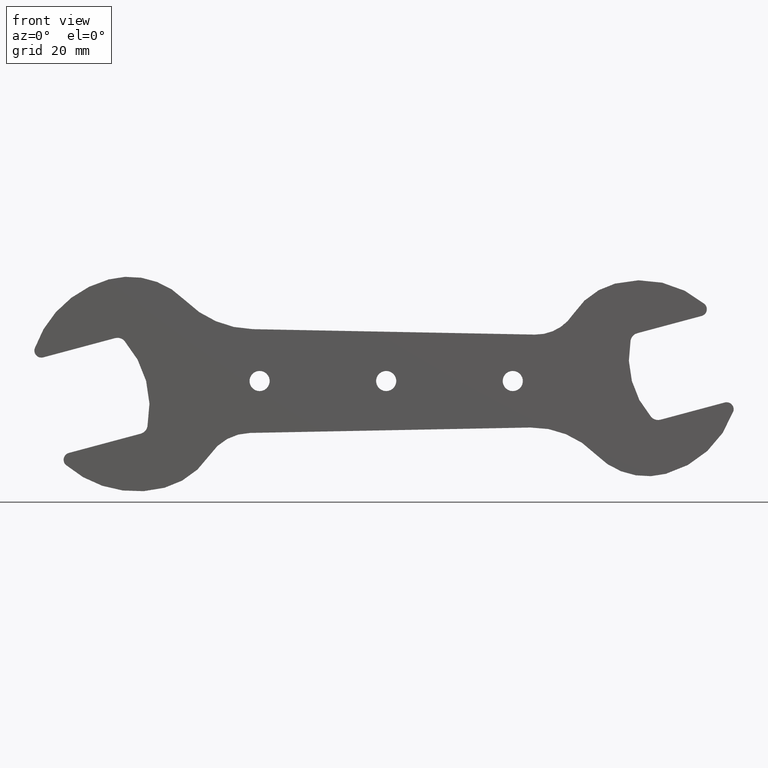
[diagram: clean part render]
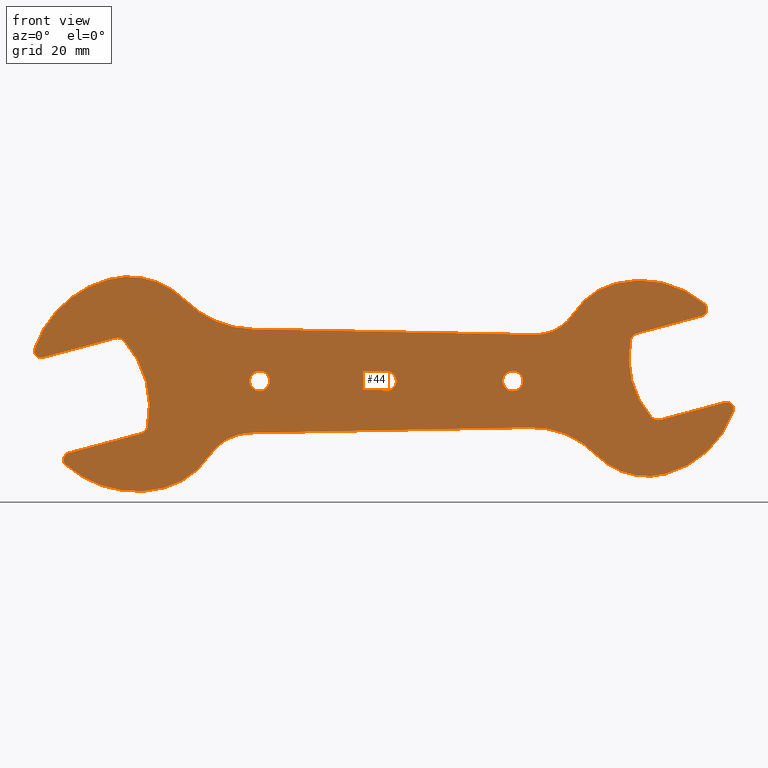
[diagram: same view with one face highlighted and labeled with its STEP entity id]
A machine part, front view. The second image highlights one B-rep face of the part: STEP entity #44.
In plain terms, the highlighted planar face has unit normal (-0, 1, 0).
Its self-contained STEP definition (entity closure, byte-faithful):
#44=ADVANCED_FACE('',(#120,#121,#122,#123),#119,.F.);
#119=PLANE('',#468);
#120=FACE_OUTER_BOUND('',#469,.T.);
#121=FACE_BOUND('',#470,.T.);
#122=FACE_BOUND('',#471,.T.);
#123=FACE_BOUND('',#472,.T.);
#465=CARTESIAN_POINT('',(-8.52579985120E+01,0.00000000000E+00,-3.09294073245E+01));
#466=DIRECTION('',(-0.00000000000E+00,1.00000000000E+00,0.00000000000E+00));
#467=DIRECTION('',(0.00000000000E+00,0.00000000000E+00,1.00000000000E+00));
#468=AXIS2_PLACEMENT_3D('',#465,#466,#467);
#469=EDGE_LOOP('',(#674,#675,#676,#677,#678,#679,#680,#681,#682,#683,#684,#685,#686,#687,#688,#689,#690,#691,#692,#693,#694,#695,#696,#697,#698,#699,#700,#701));
#470=EDGE_LOOP('',(#702,#703));
#471=EDGE_LOOP('',(#704,#705));
#472=EDGE_LOOP('',(#706,#707));
#674=ORIENTED_EDGE('',*,*,#836,.F.);
#675=ORIENTED_EDGE('',*,*,#832,.F.);
#676=ORIENTED_EDGE('',*,*,#873,.F.);
#677=ORIENTED_EDGE('',*,*,#874,.F.);
#678=ORIENTED_EDGE('',*,*,#875,.T.);
#679=ORIENTED_EDGE('',*,*,#876,.T.);
#680=ORIENTED_EDGE('',*,*,#877,.T.);
#681=ORIENTED_EDGE('',*,*,#878,.F.);
#682=ORIENTED_EDGE('',*,*,#879,.F.);
#683=ORIENTED_EDGE('',*,*,#880,.F.);
#684=ORIENTED_EDGE('',*,*,#881,.T.);
#685=ORIENTED_EDGE('',*,*,#882,.T.);
#686=ORIENTED_EDGE('',*,*,#883,.T.);
#687=ORIENTED_EDGE('',*,*,#884,.F.);
#688=ORIENTED_EDGE('',*,*,#885,.F.);
#689=ORIENTED_EDGE('',*,*,#886,.F.);
#690=ORIENTED_EDGE('',*,*,#887,.F.);
#691=ORIENTED_EDGE('',*,*,#888,.F.);
#692=ORIENTED_EDGE('',*,*,#889,.T.);
#693=ORIENTED_EDGE('',*,*,#890,.T.);
#694=ORIENTED_EDGE('',*,*,#891,.T.);
#695=ORIENTED_EDGE('',*,*,#892,.F.);
#696=ORIENTED_EDGE('',*,*,#893,.F.);
#697=ORIENTED_EDGE('',*,*,#894,.F.);
#698=ORIENTED_EDGE('',*,*,#895,.T.);
#699=ORIENTED_EDGE('',*,*,#896,.T.);
#700=ORIENTED_EDGE('',*,*,#897,.T.);
#701=ORIENTED_EDGE('',*,*,#839,.F.);
#702=ORIENTED_EDGE('',*,*,#898,.F.);
#703=ORIENTED_EDGE('',*,*,#899,.F.);
#704=ORIENTED_EDGE('',*,*,#900,.F.);
#705=ORIENTED_EDGE('',*,*,#901,.F.);
#706=ORIENTED_EDGE('',*,*,#902,.F.);
#707=ORIENTED_EDGE('',*,*,#903,.F.);
#832=EDGE_CURVE('',#934,#935,#936,.T.);
#836=EDGE_CURVE('',#935,#962,#963,.T.);
#839=EDGE_CURVE('',#962,#982,#983,.T.);
#873=EDGE_CURVE('',#1218,#934,#1219,.T.);
#874=EDGE_CURVE('',#1225,#1218,#1226,.T.);
#875=EDGE_CURVE('',#1225,#1232,#1233,.T.);
#876=EDGE_CURVE('',#1232,#1239,#1240,.T.);
#877=EDGE_CURVE('',#1239,#1246,#1247,.T.);
#878=EDGE_CURVE('',#1253,#1246,#1254,.T.);
#879=EDGE_CURVE('',#1260,#1253,#1261,.T.);
#880=EDGE_CURVE('',#1267,#1260,#1268,.T.);
#881=EDGE_CURVE('',#1267,#1274,#1275,.T.);
#882=EDGE_CURVE('',#1274,#1281,#1282,.T.);
#883=EDGE_CURVE('',#1281,#1288,#1289,.T.);
#884=EDGE_CURVE('',#1295,#1288,#1296,.T.);
#885=EDGE_CURVE('',#1302,#1295,#1303,.T.);
#886=EDGE_CURVE('',#1309,#1302,#1310,.T.);
#887=EDGE_CURVE('',#1316,#1309,#1317,.T.);
#888=EDGE_CURVE('',#1323,#1316,#1324,.T.);
#889=EDGE_CURVE('',#1323,#1330,#1331,.T.);
#890=EDGE_CURVE('',#1330,#1337,#1338,.T.);
#891=EDGE_CURVE('',#1337,#1344,#1345,.T.);
#892=EDGE_CURVE('',#1351,#1344,#1352,.T.);
#893=EDGE_CURVE('',#1358,#1351,#1359,.T.);
#894=EDGE_CURVE('',#1365,#1358,#1366,.T.);
#895=EDGE_CURVE('',#1365,#1372,#1373,.T.);
#896=EDGE_CURVE('',#1372,#1379,#1380,.T.);
#897=EDGE_CURVE('',#1379,#982,#1386,.T.);
#898=EDGE_CURVE('',#1392,#1393,#1394,.T.);
#899=EDGE_CURVE('',#1393,#1392,#1400,.T.);
#900=EDGE_CURVE('',#1406,#1407,#1408,.T.);
#901=EDGE_CURVE('',#1407,#1406,#1414,.T.);
#902=EDGE_CURVE('',#1420,#1421,#1422,.T.);
#903=EDGE_CURVE('',#1421,#1420,#1428,.T.);
#934=VERTEX_POINT('',#1614);
#935=VERTEX_POINT('',#1615);
#936=CIRCLE('',#1619,2.10000000000E+01);
#962=VERTEX_POINT('',#1632);
#963=CIRCLE('',#1636,2.00000000000E+00);
#982=VERTEX_POINT('',#1645);
#983=LINE('',#1646,#1647);
#1218=VERTEX_POINT('',#1805);
#1219=CIRCLE('',#1809,2.00000000000E+00);
#1225=VERTEX_POINT('',#1810);
#1226=LINE('',#1811,#1812);
#1232=VERTEX_POINT('',#1814);
#1233=CIRCLE('',#1818,1.50000000000E+00);
#1239=VERTEX_POINT('',#1819);
#1240=CIRCLE('',#1823,2.30000000000E+01);
#1246=VERTEX_POINT('',#1824);
#1247=CIRCLE('',#1828,1.67000000000E+01);
#1253=VERTEX_POINT('',#1829);
#1254=CIRCLE('',#1833,1.05000000000E+01);
#1260=VERTEX_POINT('',#1834);
#1261=LINE('',#1835,#1836);
#1267=VERTEX_POINT('',#1838);
#1268=CIRCLE('',#1842,1.90000000000E+01);
#1274=VERTEX_POINT('',#1843);
#1275=CIRCLE('',#1847,1.53000000000E+01);
#1281=VERTEX_POINT('',#1848);
#1282=CIRCLE('',#1852,2.10000000000E+01);
#1288=VERTEX_POINT('',#1853);
#1289=CIRCLE('',#1857,1.50000000000E+00);
#1295=VERTEX_POINT('',#1858);
#1296=LINE('',#1859,#1860);
#1302=VERTEX_POINT('',#1862);
#1303=CIRCLE('',#1866,2.00000000000E+00);
#1309=VERTEX_POINT('',#1867);
#1310=CIRCLE('',#1871,1.90000000000E+01);
#1316=VERTEX_POINT('',#1872);
#1317=CIRCLE('',#1876,2.00000000000E+00);
#1323=VERTEX_POINT('',#1877);
#1324=LINE('',#1878,#1879);
#1330=VERTEX_POINT('',#1881);
#1331=CIRCLE('',#1885,1.50000000000E+00);
#1337=VERTEX_POINT('',#1886);
#1338=CIRCLE('',#1890,2.09999405716E+01);
#1344=VERTEX_POINT('',#1891);
#1345=CIRCLE('',#1895,1.52999912539E+01);
#1351=VERTEX_POINT('',#1896);
#1352=CIRCLE('',#1900,9.50000000000E+00);
#1358=VERTEX_POINT('',#1901);
#1359=LINE('',#1902,#1903);
#1365=VERTEX_POINT('',#1905);
#1366=CIRCLE('',#1909,2.10000000000E+01);
#1372=VERTEX_POINT('',#1910);
#1373=CIRCLE('',#1914,1.67000000000E+01);
#1379=VERTEX_POINT('',#1915);
#1380=CIRCLE('',#1919,2.30000000000E+01);
#1386=CIRCLE('',#1923,1.50000000000E+00);
#1392=VERTEX_POINT('',#1924);
#1393=VERTEX_POINT('',#1925);
#1394=CIRCLE('',#1929,2.15000000000E+00);
#1400=CIRCLE('',#1933,2.15000000000E+00);
#1406=VERTEX_POINT('',#1934);
#1407=VERTEX_POINT('',#1935);
#1408=CIRCLE('',#1939,2.15000000000E+00);
#1414=CIRCLE('',#1943,2.15000000000E+00);
#1420=VERTEX_POINT('',#1944);
#1421=VERTEX_POINT('',#1945);
#1422=CIRCLE('',#1949,2.15000000000E+00);
#1428=CIRCLE('',#1953,2.15000000000E+00);
#1614=CARTESIAN_POINT('',(-5.09231709253E+01,0.00000000000E+00,-9.70941084283E+00));
#1615=CARTESIAN_POINT('',(-5.58148508249E+01,0.00000000000E+00,8.54658872338E+00));
#1616=CARTESIAN_POINT('',(-7.14835968893E+01,0.00000000000E+00,-5.43519931572E+00));
#1617=DIRECTION('',(0.00000000000E+00,-1.00000000000E+00,0.00000000000E+00));
#1618=DIRECTION('',(-0.00000000000E+00,-0.00000000000E+00,-1.00000000000E+00));
#1619=AXIS2_PLACEMENT_3D('',#1616,#1617,#1618);
#1632=CARTESIAN_POINT('',(-5.78247502838E+01,0.00000000000E+00,9.14684155830E+00));
#1633=CARTESIAN_POINT('',(-5.73071123548E+01,0.00000000000E+00,7.21498986252E+00));
#1634=DIRECTION('',(0.00000000000E+00,-1.00000000000E+00,0.00000000000E+00));
#1635=DIRECTION('',(-0.00000000000E+00,-0.00000000000E+00,-1.00000000000E+00));
#1636=AXIS2_PLACEMENT_3D('',#1633,#1634,#1635);
#1645=CARTESIAN_POINT('',(-7.31572476037E+01,0.00000000000E+00,5.03851265519E+00));
#1646=CARTESIAN_POINT('',(-5.78247502838E+01,0.00000000000E+00,9.14684155830E+00));
#1647=VECTOR('',#1648,1.58733689065E+01);
#1648=DIRECTION('',(-9.65925847893E-01,0.00000000000E+00,-2.58818964475E-01));
#1805=CARTESIAN_POINT('',(-5.23636689178E+01,0.00000000000E+00,-1.12341948050E+01));
#1806=CARTESIAN_POINT('',(-5.28813067313E+01,0.00000000000E+00,-9.30234307834E+00));
#1807=DIRECTION('',(0.00000000000E+00,-1.00000000000E+00,0.00000000000E+00));
#1808=DIRECTION('',(-0.00000000000E+00,-0.00000000000E+00,-1.00000000000E+00));
#1809=AXIS2_PLACEMENT_3D('',#1806,#1807,#1808);
#1810=CARTESIAN_POINT('',(-6.76961680509E+01,0.00000000000E+00,-1.53425232125E+01));
#1811=CARTESIAN_POINT('',(-6.76961680509E+01,0.00000000000E+00,-1.53425232125E+01));
#1812=VECTOR('',#1813,1.58733705296E+01);
#1813=DIRECTION('',(9.65925863352E-01,0.00000000000E+00,2.58818906782E-01));
#1814=CARTESIAN_POINT('',(-6.82902890689E+01,0.00000000000E+00,-1.79249858688E+01));
#1815=CARTESIAN_POINT('',(-6.73079396907E+01,0.00000000000E+00,-1.67914120075E+01));
#1816=DIRECTION('',(0.00000000000E+00,-1.00000000000E+00,0.00000000000E+00));
#1817=DIRECTION('',(-0.00000000000E+00,-0.00000000000E+00,-1.00000000000E+00));
#1818=AXIS2_PLACEMENT_3D('',#1815,#1816,#1817);
#1819=CARTESIAN_POINT('',(-4.72747603967E+01,0.00000000000E+00,-2.27598146308E+01));
#1820=CARTESIAN_POINT('',(-5.32275986032E+01,0.00000000000E+00,-5.43519994716E-01));
#1821=DIRECTION('',(0.00000000000E+00,-1.00000000000E+00,-0.00000000000E+00));
#1822=DIRECTION('',(2.58819045103E-01,0.00000000000E+00,-9.65925826289E-01));
#1823=AXIS2_PLACEMENT_3D('',#1820,#1821,#1822);
#1824=CARTESIAN_POINT('',(-3.76426909546E+01,0.00000000000E+00,-1.58030664305E+01));
#1825=CARTESIAN_POINT('',(-5.15970384499E+01,0.00000000000E+00,-6.62885333177E+00));
#1826=DIRECTION('',(0.00000000000E+00,-1.00000000000E+00,0.00000000000E+00));
#1827=DIRECTION('',(-0.00000000000E+00,-0.00000000000E+00,-1.00000000000E+00));
#1828=AXIS2_PLACEMENT_3D('',#1825,#1826,#1827);
#1829=CARTESIAN_POINT('',(-2.90717174274E+01,0.00000000000E+00,-1.10732413147E+01));
#1830=CARTESIAN_POINT('',(-2.88689994156E+01,0.00000000000E+00,-2.15712842470E+01));
#1831=DIRECTION('',(0.00000000000E+00,-1.00000000000E+00,0.00000000000E+00));
#1832=DIRECTION('',(-0.00000000000E+00,-0.00000000000E+00,-1.00000000000E+00));
#1833=AXIS2_PLACEMENT_3D('',#1830,#1831,#1832);
#1834=CARTESIAN_POINT('',(3.07427415672E+01,0.00000000000E+00,-9.91821953754E+00));
#1835=CARTESIAN_POINT('',(3.07427415672E+01,0.00000000000E+00,-9.91821953754E+00));
#1836=VECTOR('',#1837,5.98256097347E+01);
#1837=DIRECTION('',(-9.99813612597E-01,0.00000000000E+00,-1.93064773150E-02));
#1838=CARTESIAN_POINT('',(4.47373841532E+01,0.00000000000E+00,-1.56752471010E+01));
#1839=CARTESIAN_POINT('',(3.11095646362E+01,0.00000000000E+00,-2.89146781769E+01));
#1840=DIRECTION('',(0.00000000000E+00,-1.00000000000E+00,0.00000000000E+00));
#1841=DIRECTION('',(-0.00000000000E+00,-0.00000000000E+00,-1.00000000000E+00));
#1842=AXIS2_PLACEMENT_3D('',#1839,#1840,#1841);
#1843=CARTESIAN_POINT('',(5.96712903664E+01,0.00000000000E+00,-1.97926884927E+01));
#1844=CARTESIAN_POINT('',(5.57113651327E+01,0.00000000000E+00,-5.01402102415E+00));
#1845=DIRECTION('',(0.00000000000E+00,-1.00000000000E+00,-0.00000000000E+00));
#1846=DIRECTION('',(2.58818631671E-01,0.00000000000E+00,-9.65925937068E-01));
#1847=AXIS2_PLACEMENT_3D('',#1844,#1845,#1846);
#1848=CARTESIAN_POINT('',(7.40293534263E+01,0.00000000000E+00,-6.52444529556E+00));
#1849=CARTESIAN_POINT('',(5.42360991013E+01,0.00000000000E+00,4.91756185695E-01));
#1850=DIRECTION('',(0.00000000000E+00,-1.00000000000E+00,0.00000000000E+00));
#1851=DIRECTION('',(-0.00000000000E+00,-0.00000000000E+00,-1.00000000000E+00));
#1852=AXIS2_PLACEMENT_3D('',#1849,#1850,#1851);
#1853=CARTESIAN_POINT('',(7.22273209163E+01,0.00000000000E+00,-4.57439932410E+00));
#1854=CARTESIAN_POINT('',(7.26155495460E+01,0.00000000000E+00,-6.02328804690E+00));
#1855=DIRECTION('',(0.00000000000E+00,-1.00000000000E+00,0.00000000000E+00));
#1856=DIRECTION('',(-0.00000000000E+00,-0.00000000000E+00,-1.00000000000E+00));
#1857=AXIS2_PLACEMENT_3D('',#1854,#1855,#1856);
#1858=CARTESIAN_POINT('',(5.85126918379E+01,0.00000000000E+00,-8.24922373987E+00));
#1859=CARTESIAN_POINT('',(5.85126918379E+01,0.00000000000E+00,-8.24922373987E+00));
#1860=VECTOR('',#1861,1.41984289710E+01);
#1861=DIRECTION('',(9.65925815201E-01,0.00000000000E+00,2.58819086484E-01));
#1862=CARTESIAN_POINT('',(5.64940682758E+01,0.00000000000E+00,-7.63912959919E+00));
#1863=CARTESIAN_POINT('',(5.79950536649E+01,0.00000000000E+00,-6.31737210947E+00));
#1864=DIRECTION('',(0.00000000000E+00,-1.00000000000E+00,-0.00000000000E+00));
#1865=DIRECTION('',(2.58819086484E-01,0.00000000000E+00,-9.65925815201E-01));
#1866=AXIS2_PLACEMENT_3D('',#1863,#1864,#1865);
#1867=CARTESIAN_POINT('',(5.21261087122E+01,0.00000000000E+00,8.66228567357E+00));
#1868=CARTESIAN_POINT('',(7.07534294725E+01,0.00000000000E+00,4.91756655313E+00));
#1869=DIRECTION('',(0.00000000000E+00,-1.00000000000E+00,0.00000000000E+00));
#1870=DIRECTION('',(-0.00000000000E+00,-0.00000000000E+00,-1.00000000000E+00));
#1871=AXIS2_PLACEMENT_3D('',#1868,#1869,#1870);
#1872=CARTESIAN_POINT('',(5.35692413070E+01,0.00000000000E+00,1.01999563872E+01));
#1873=CARTESIAN_POINT('',(5.40868793185E+01,0.00000000000E+00,8.26810471353E+00));
#1874=DIRECTION('',(0.00000000000E+00,-1.00000000000E+00,0.00000000000E+00));
#1875=DIRECTION('',(-0.00000000000E+00,-0.00000000000E+00,-1.00000000000E+00));
#1876=AXIS2_PLACEMENT_3D('',#1873,#1874,#1875);
#1877=CARTESIAN_POINT('',(6.72838812483E+01,0.00000000000E+00,1.38747824850E+01));
#1878=CARTESIAN_POINT('',(6.72838812483E+01,0.00000000000E+00,1.38747824850E+01));
#1879=VECTOR('',#1880,1.41984398991E+01);
#1880=DIRECTION('',(-9.65925836834E-01,0.00000000000E+00,-2.58819005748E-01));
#1881=CARTESIAN_POINT('',(6.78694657598E+01,0.00000000000E+00,1.64645867506E+01));
#1882=CARTESIAN_POINT('',(6.68956527396E+01,0.00000000000E+00,1.53236712403E+01));
#1883=DIRECTION('',(0.00000000000E+00,-1.00000000000E+00,0.00000000000E+00));
#1884=DIRECTION('',(-0.00000000000E+00,-0.00000000000E+00,-1.00000000000E+00));
#1885=AXIS2_PLACEMENT_3D('',#1882,#1883,#1884);
#1886=CARTESIAN_POINT('',(4.88007957322E+01,0.00000000000E+00,2.07761624477E+01));
#1887=CARTESIAN_POINT('',(5.42361220590E+01,0.00000000000E+00,4.91814807453E-01));
#1888=DIRECTION('',(0.00000000000E+00,-1.00000000000E+00,0.00000000000E+00));
#1889=DIRECTION('',(-0.00000000000E+00,-0.00000000000E+00,-1.00000000000E+00));
#1890=AXIS2_PLACEMENT_3D('',#1887,#1888,#1889);
#1891=CARTESIAN_POINT('',(3.98866303135E+01,0.00000000000E+00,1.42646227154E+01));
#1892=CARTESIAN_POINT('',(5.27608280185E+01,0.00000000000E+00,5.99753339554E+00));
#1893=DIRECTION('',(0.00000000000E+00,-1.00000000000E+00,0.00000000000E+00));
#1894=DIRECTION('',(-0.00000000000E+00,-0.00000000000E+00,-1.00000000000E+00));
#1895=AXIS2_PLACEMENT_3D('',#1892,#1893,#1894);
#1896=CARTESIAN_POINT('',(3.17094296317E+01,0.00000000000E+00,9.89955639787E+00));
#1897=CARTESIAN_POINT('',(3.18928428552E+01,0.00000000000E+00,1.93977856849E+01));
#1898=DIRECTION('',(0.00000000000E+00,-1.00000000000E+00,-0.00000000000E+00));
#1899=DIRECTION('',(8.41451311399E-01,0.00000000000E+00,-5.40332944161E-01));
#1900=AXIS2_PLACEMENT_3D('',#1897,#1898,#1899);
#1901=CARTESIAN_POINT('',(-2.84643007519E+01,0.00000000000E+00,1.10615264373E+01));
#1902=CARTESIAN_POINT('',(-2.84643007519E+01,0.00000000000E+00,1.10615264373E+01));
#1903=VECTOR('',#1904,6.01849483065E+01);
#1904=DIRECTION('',(9.99813609164E-01,0.00000000000E+00,-1.93066551048E-02));
#1905=CARTESIAN_POINT('',(-4.29868516019E+01,0.00000000000E+00,1.72875378755E+01));
#1906=CARTESIAN_POINT('',(-2.80588609947E+01,0.00000000000E+00,3.20576122298E+01));
#1907=DIRECTION('',(0.00000000000E+00,-1.00000000000E+00,0.00000000000E+00));
#1908=DIRECTION('',(-0.00000000000E+00,-0.00000000000E+00,-1.00000000000E+00));
#1909=AXIS2_PLACEMENT_3D('',#1906,#1907,#1908);
#1910=CARTESIAN_POINT('',(-5.91804366406E+01,0.00000000000E+00,2.16727740099E+01));
#1911=CARTESIAN_POINT('',(-5.48581584182E+01,0.00000000000E+00,5.54181207947E+00));
#1912=DIRECTION('',(0.00000000000E+00,-1.00000000000E+00,0.00000000000E+00));
#1913=DIRECTION('',(-0.00000000000E+00,-0.00000000000E+00,-1.00000000000E+00));
#1914=AXIS2_PLACEMENT_3D('',#1911,#1912,#1913);
#1915=CARTESIAN_POINT('',(-7.49630023840E+01,0.00000000000E+00,6.97793082855E+00));
#1916=CARTESIAN_POINT('',(-5.32275986032E+01,0.00000000000E+00,-5.43519994716E-01));
#1917=DIRECTION('',(0.00000000000E+00,-1.00000000000E+00,0.00000000000E+00));
#1918=DIRECTION('',(-0.00000000000E+00,-0.00000000000E+00,-1.00000000000E+00));
#1919=AXIS2_PLACEMENT_3D('',#1916,#1917,#1918);
#1920=CARTESIAN_POINT('',(-7.35454760504E+01,0.00000000000E+00,6.48740142703E+00));
#1921=DIRECTION('',(0.00000000000E+00,-1.00000000000E+00,-0.00000000000E+00));
#1922=DIRECTION('',(2.58818964475E-01,0.00000000000E+00,-9.65925847893E-01));
#1923=AXIS2_PLACEMENT_3D('',#1920,#1921,#1922);
#1924=CARTESIAN_POINT('',(5.18104078158E-16,0.00000000000E+00,-2.15000000000E+00));
#1925=CARTESIAN_POINT('',(0.00000000000E+00,0.00000000000E+00,2.15000000000E+00));
#1926=CARTESIAN_POINT('',(0.00000000000E+00,0.00000000000E+00,0.00000000000E+00));
#1927=DIRECTION('',(0.00000000000E+00,-1.00000000000E+00,0.00000000000E+00));
#1928=DIRECTION('',(-1.22460635382E-16,0.00000000000E+00,1.00000000000E+00));
#1929=AXIS2_PLACEMENT_3D('',#1926,#1927,#1928);
#1930=CARTESIAN_POINT('',(0.00000000000E+00,0.00000000000E+00,0.00000000000E+00));
#1931=DIRECTION('',(0.00000000000E+00,-1.00000000000E+00,0.00000000000E+00));
#1932=DIRECTION('',(-1.22460635382E-16,0.00000000000E+00,1.00000000000E+00));
#1933=AXIS2_PLACEMENT_3D('',#1930,#1931,#1932);
#1934=CARTESIAN_POINT('',(-2.69991599686E+01,0.00000000000E+00,-2.15000000000E+00));
#1935=CARTESIAN_POINT('',(-2.69991599686E+01,0.00000000000E+00,2.15000000000E+00));
#1936=CARTESIAN_POINT('',(-2.69991599686E+01,0.00000000000E+00,0.00000000000E+00));
#1937=DIRECTION('',(0.00000000000E+00,-1.00000000000E+00,0.00000000000E+00));
#1938=DIRECTION('',(-1.22460635382E-16,0.00000000000E+00,1.00000000000E+00));
#1939=AXIS2_PLACEMENT_3D('',#1936,#1937,#1938);
#1940=CARTESIAN_POINT('',(-2.69991599686E+01,0.00000000000E+00,0.00000000000E+00));
#1941=DIRECTION('',(0.00000000000E+00,-1.00000000000E+00,0.00000000000E+00));
#1942=DIRECTION('',(-1.22460635382E-16,0.00000000000E+00,1.00000000000E+00));
#1943=AXIS2_PLACEMENT_3D('',#1940,#1941,#1942);
#1944=CARTESIAN_POINT('',(2.70008400314E+01,0.00000000000E+00,-2.15000000000E+00));
#1945=CARTESIAN_POINT('',(2.70008400314E+01,0.00000000000E+00,2.15000000000E+00));
#1946=CARTESIAN_POINT('',(2.70008400314E+01,0.00000000000E+00,0.00000000000E+00));
#1947=DIRECTION('',(0.00000000000E+00,-1.00000000000E+00,0.00000000000E+00));
#1948=DIRECTION('',(-1.22460635382E-16,0.00000000000E+00,1.00000000000E+00));
#1949=AXIS2_PLACEMENT_3D('',#1946,#1947,#1948);
#1950=CARTESIAN_POINT('',(2.70008400314E+01,0.00000000000E+00,0.00000000000E+00));
#1951=DIRECTION('',(0.00000000000E+00,-1.00000000000E+00,0.00000000000E+00));
#1952=DIRECTION('',(-1.22460635382E-16,0.00000000000E+00,1.00000000000E+00));
#1953=AXIS2_PLACEMENT_3D('',#1950,#1951,#1952);